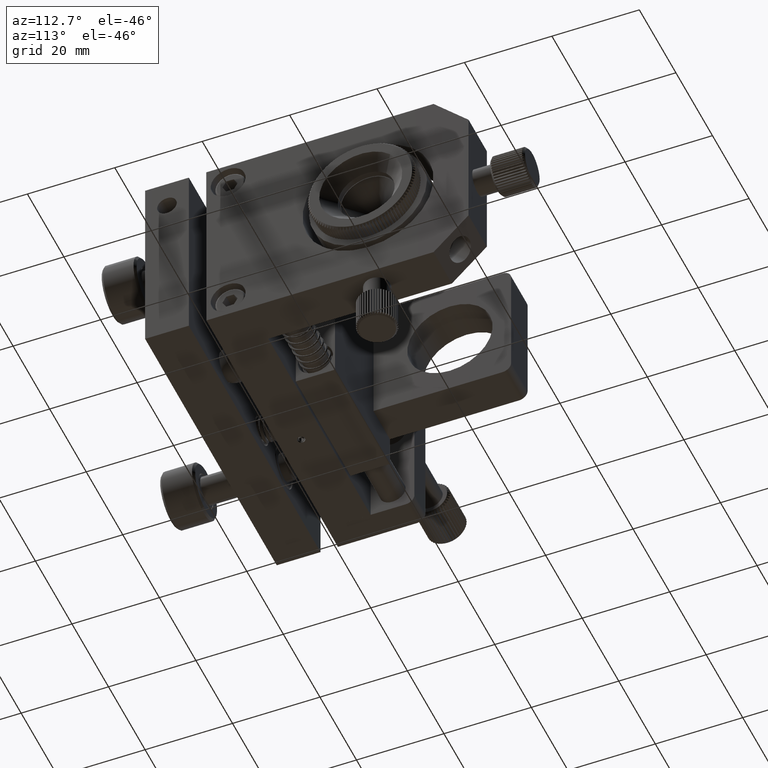
[diagram: clean part render]
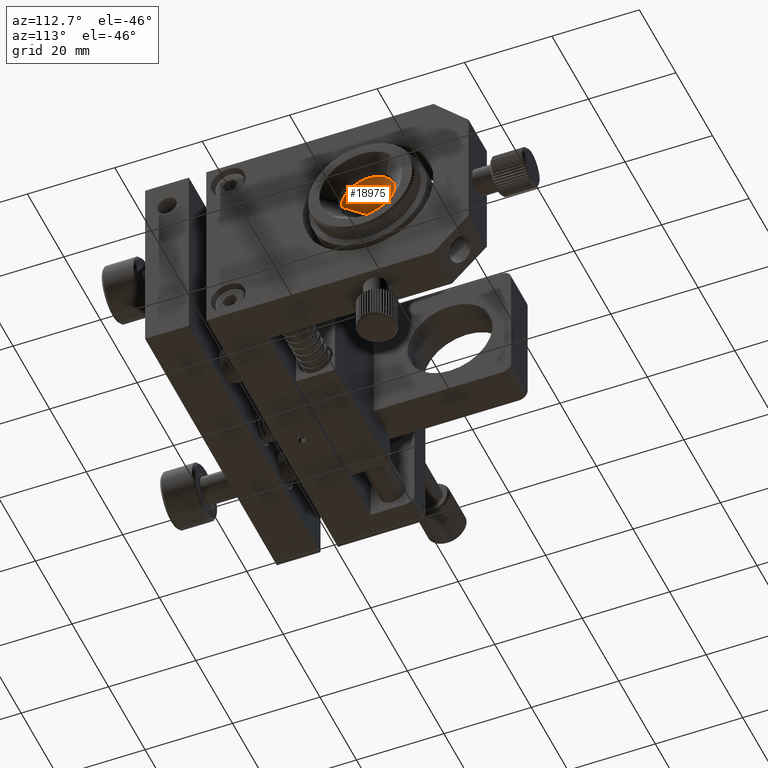
[diagram: same view with one face highlighted and labeled with its STEP entity id]
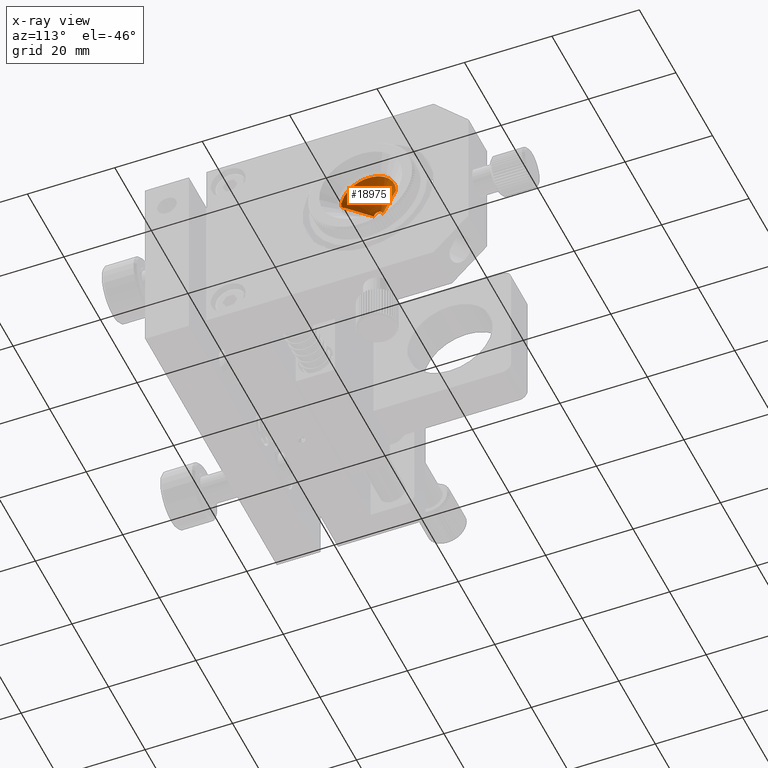
[diagram: x-ray of the same camera — body ghosted, the highlighted face saturated]
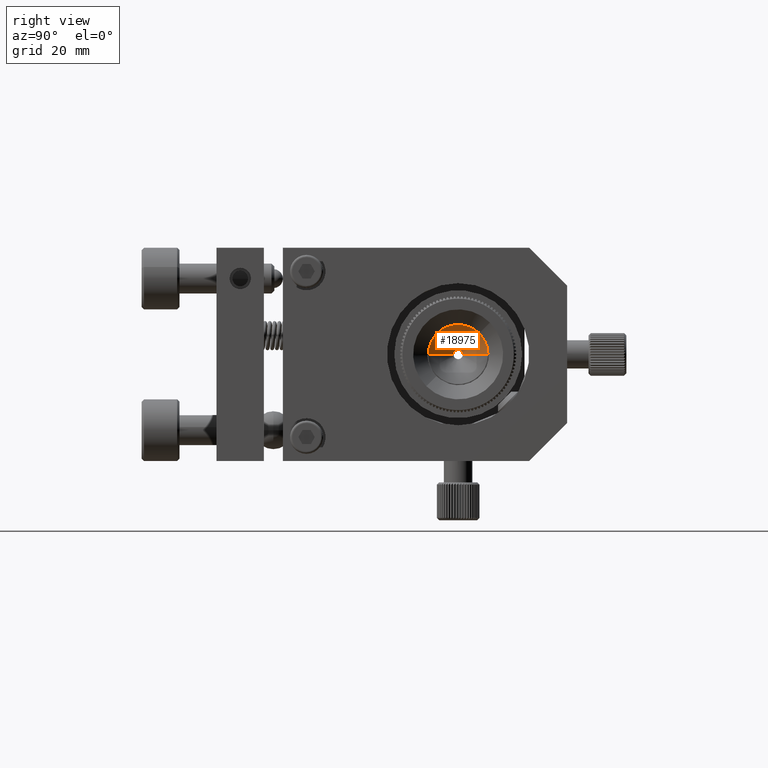
[diagram: same view with one face highlighted and labeled with its STEP entity id]
A machine part, auxiliary view. The second image highlights one B-rep face of the part: STEP entity #18975.
The next image is the same camera in x-ray: the body ghosted, the highlighted face saturated — about 0% of this face is hidden behind the body in this view.
A second angle (right view) of the same face is appended — the face is thin or edge-on in the first view.
In plain terms, the highlighted conical surface has half-angle 45 deg.
Its self-contained STEP definition (entity closure, byte-faithful):
#2133 = DIRECTION ( 'NONE',  ( 1.000000000000000000, 9.367723249499513400E-031, 2.766582776912877800E-016 ) ) ;
#2820 = CARTESIAN_POINT ( 'NONE',  ( 37.69999999999993900, 32.00000000000000000, -5.259645332745630600E-015 ) ) ;
#2964 = ORIENTED_EDGE ( 'NONE', *, *, #55666, .F. ) ;
#3062 = FACE_OUTER_BOUND ( 'NONE', #3974, .T. ) ;
#3974 = EDGE_LOOP ( 'NONE', ( #2964, #30891, #47580, #44657 ) ) ;
#4168 = CIRCLE ( 'NONE', #29733, 1.000000000000000900 ) ;
#7137 = CIRCLE ( 'NONE', #41360, 6.300000000000041600 ) ;
#8176 = VERTEX_POINT ( 'NONE', #21312 ) ;
#11038 = CARTESIAN_POINT ( 'NONE',  ( 37.69999999999993900, 38.30000000000004000, -3.516698183290501800E-015 ) ) ;
#11520 = LINE ( 'NONE', #60271, #17844 ) ;
#12568 = CARTESIAN_POINT ( 'NONE',  ( 37.69999999999993900, 25.69999999999995700, -6.231064998737921800E-015 ) ) ;
#12767 = CARTESIAN_POINT ( 'NONE',  ( 37.69999999999993900, 25.69999999999995700, -6.231064998737921800E-015 ) ) ;
#13723 = EDGE_CURVE ( 'NONE', #33140, #8176, #4168, .T. ) ;
#14497 = AXIS2_PLACEMENT_3D ( 'NONE', #35630, #34965, #20450 ) ;
#17844 = VECTOR ( 'NONE', #30366, 1000.000000000000000 ) ;
#18975 = ADVANCED_FACE ( 'NONE', ( #3062 ), #22495, .F. ) ;
#20362 = EDGE_CURVE ( 'NONE', #33140, #30302, #11520, .T. ) ;
#20450 = DIRECTION ( 'NONE',  ( 0.0000000000000000000, 1.000000000000000000, 2.766582776912885200E-016 ) ) ;
#21312 = CARTESIAN_POINT ( 'NONE',  ( 32.39999999999994200, 30.99999999999999600, -6.555596400511965300E-015 ) ) ;
#21955 = CARTESIAN_POINT ( 'NONE',  ( 32.39999999999994200, 32.00000000000000000, -6.725934204509453200E-015 ) ) ;
#22495 = CONICAL_SURFACE ( 'NONE', #14497, 6.300000000000041600, 0.7853981633974520500 ) ;
#23067 = CARTESIAN_POINT ( 'NONE',  ( 32.39999999999994200, 33.00000000000000000, -6.449275926818163900E-015 ) ) ;
#25700 = LINE ( 'NONE', #12568, #39667 ) ;
#27605 = DIRECTION ( 'NONE',  ( 1.000000000000000000, 9.367723249499513400E-031, 2.766582776912877800E-016 ) ) ;
#29733 = AXIS2_PLACEMENT_3D ( 'NONE', #21955, #2133, #36960 ) ;
#30302 = VERTEX_POINT ( 'NONE', #11038 ) ;
#30366 = DIRECTION ( 'NONE',  ( 0.7071067811865449100, 0.7071067811865501300, 3.912538884538014500E-016 ) ) ;
#30891 = ORIENTED_EDGE ( 'NONE', *, *, #13723, .F. ) ;
#33140 = VERTEX_POINT ( 'NONE', #23067 ) ;
#34965 = DIRECTION ( 'NONE',  ( 1.000000000000000000, 9.367723249499513400E-031, 2.766582776912877800E-016 ) ) ;
#35630 = CARTESIAN_POINT ( 'NONE',  ( 37.69999999999993900, 32.00000000000000000, -5.259645332745630600E-015 ) ) ;
#36960 = DIRECTION ( 'NONE',  ( 0.0000000000000000000, 1.000000000000000000, 2.766582776912895600E-016 ) ) ;
#38477 = VERTEX_POINT ( 'NONE', #12767 ) ;
#39667 = VECTOR ( 'NONE', #46585, 1000.000000000000000 ) ;
#41360 = AXIS2_PLACEMENT_3D ( 'NONE', #2820, #27605, #52068 ) ;
#44657 = ORIENTED_EDGE ( 'NONE', *, *, #45161, .T. ) ;
#45161 = EDGE_CURVE ( 'NONE', #30302, #38477, #7137, .T. ) ;
#46585 = DIRECTION ( 'NONE',  ( 0.7071067811865449100, -0.7071067811865501300, 8.659560562354782500E-017 ) ) ;
#47580 = ORIENTED_EDGE ( 'NONE', *, *, #20362, .T. ) ;
#52068 = DIRECTION ( 'NONE',  ( 0.0000000000000000000, 1.000000000000000000, 2.766582776912885200E-016 ) ) ;
#55666 = EDGE_CURVE ( 'NONE', #8176, #38477, #25700, .T. ) ;
#60271 = CARTESIAN_POINT ( 'NONE',  ( 37.69999999999993900, 38.30000000000004000, -3.516698183290501800E-015 ) ) ;